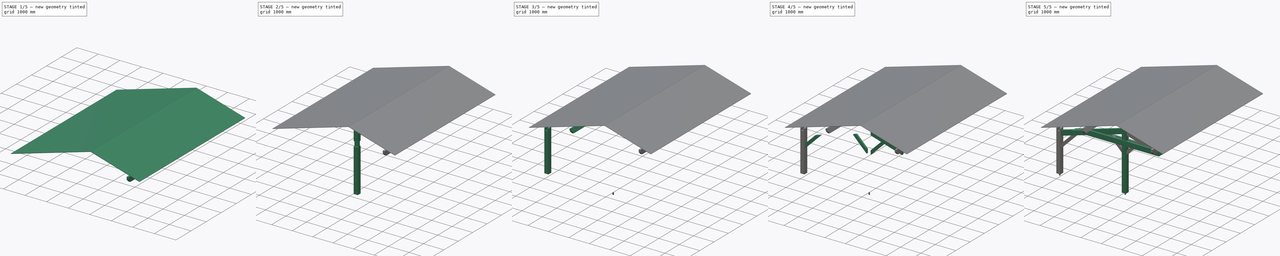
[diagram: build sequence overview — one tinted view per stage of 5, left to right]
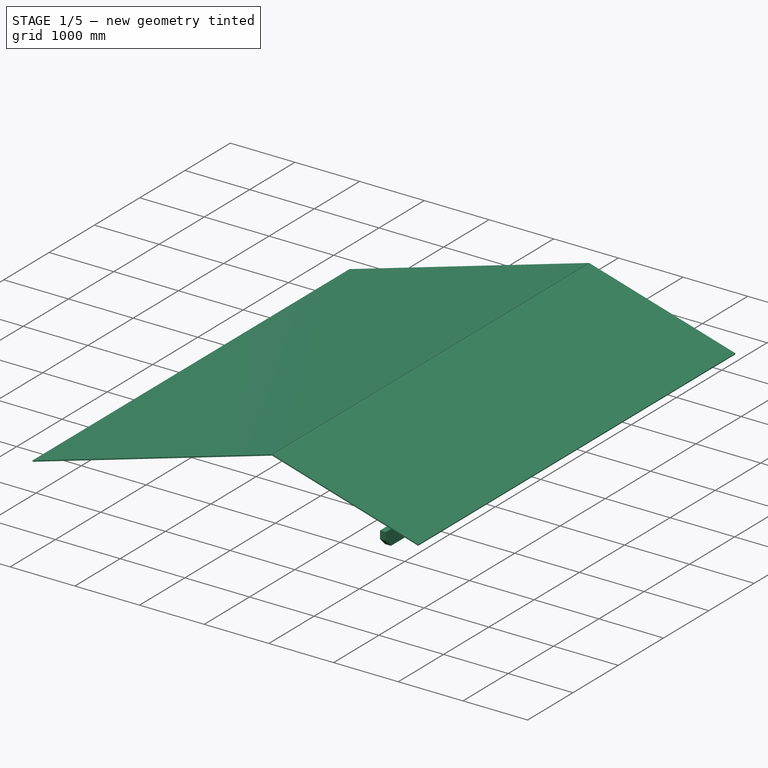
[diagram: stage 1 of 5 — iso view after this stage's code; geometry added in this stage tinted green]
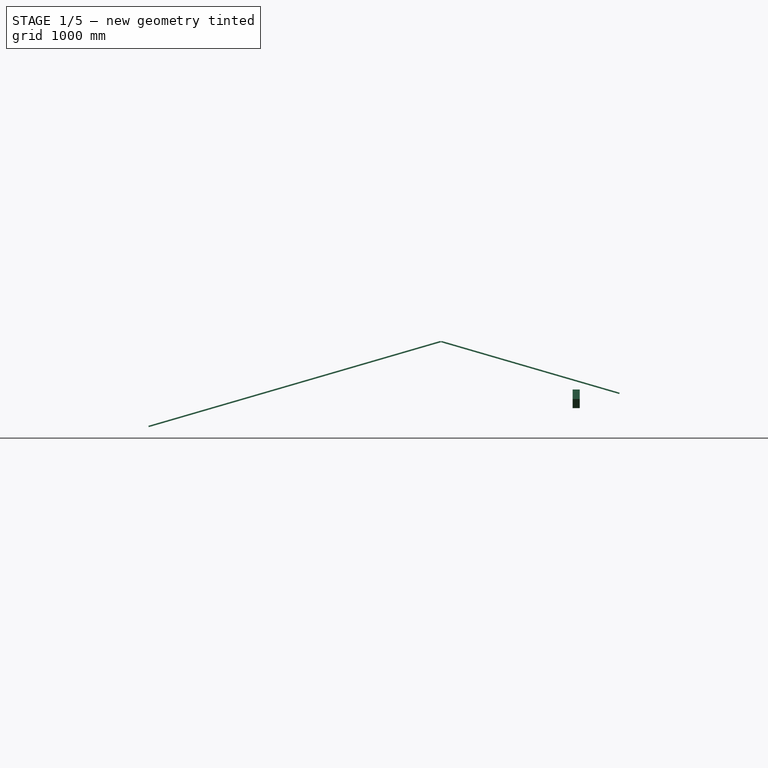
[diagram: stage 1 of 5 — front view after this stage's code; geometry added in this stage tinted green]
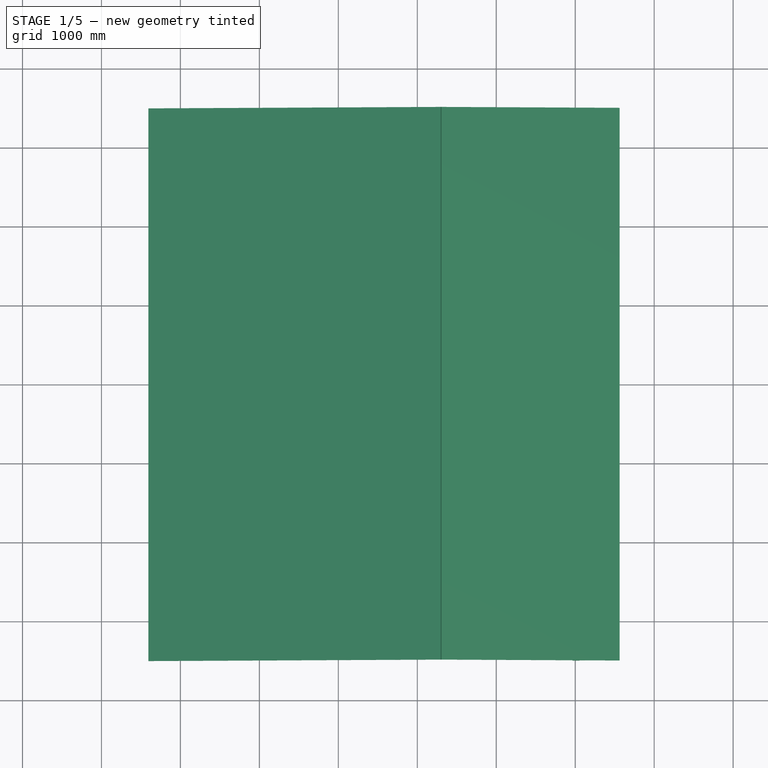
[diagram: stage 1 of 5 — top view after this stage's code; geometry added in this stage tinted green]
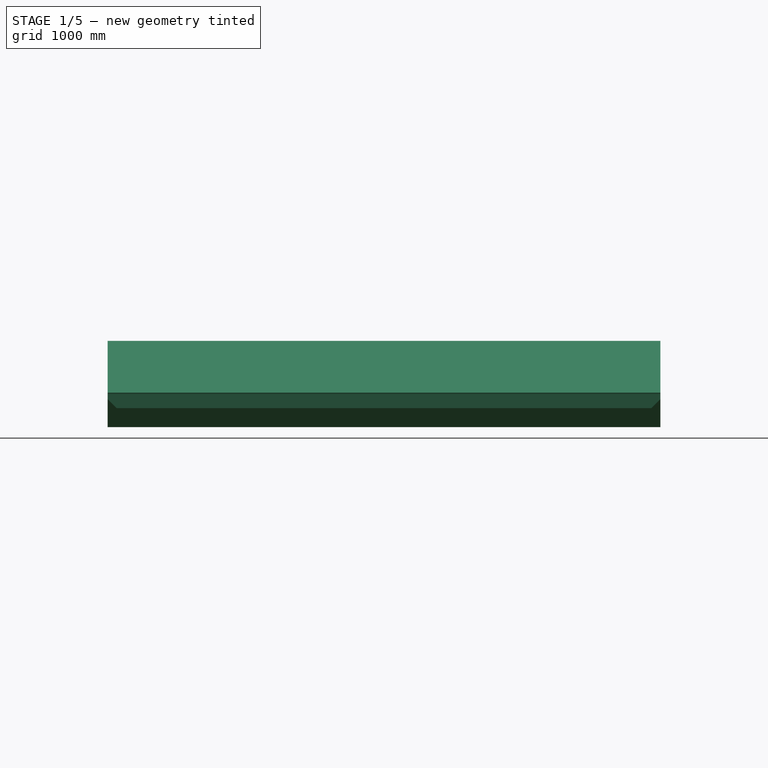
[diagram: stage 1 of 5 — right view after this stage's code; geometry added in this stage tinted green]
FCSTD DOCUMENT  (FreeCAD 1.0R39319 (Git))
Label: car_port
License: All rights reserved
objects: PartDesign::Body×31, PartDesign::SubShapeBinder×24, PartDesign::Pad×19, PartDesign::FeatureBase×12, Sketcher::SketchObject×5, PartDesign::Chamfer×5, PartDesign::Boolean×3, PartDesign::LinearPattern×2, App::VarSet×1, App::Part×1
note: 171 computed .brp shape members not serialized (recipe doc carries the construction recipe); baked Part::Feature solids carry a one-line shape summary decoded from their .brp

FEATURE [PartDesign::Body] Body014
  AllowCompound = false
  Group = -> [Clone003]
  Origin = -> Origin014
  Tip = -> Clone003
FEATURE [App::Part] Part  label="клонорованные_детали"
  Group = -> [Body012,Body013,Body014,Body015,Body016,Body017,Body018,Body019,Body020,Body021,Body022]
  Origin = -> Origin023
  Placement = pos=(0,5800,0) rot=(0,0,1;0rad)
  expr: .Placement.Base.y = <<VarSet>>.Length - 200 mm
FEATURE [PartDesign::SubShapeBinder] Binder019
  BindCopyOnChange = 0
  BindMode = 0
  ClaimChildren = false
  Context = -> Body026 [Binder019.]
  Fuse = false
  MakeFace = true
  OffsetFill = false
  OffsetIntersection = false
  OffsetJoinType = 0
  OffsetOpenResult = false
  PartialLoad = false
  Refine = true
  Relative = true
  Support = -> [Sketch]
  _Version = 2
FEATURE [PartDesign::Pad] Pad014
  Direction = (0,1,0)
  Length = 6500
  Length2 = 500
  Profile = -> Binder019 [Edge38,Edge60,Edge58,Edge59]
  Refine = true
  Suppressed = false
  Type = 4
  expr: Length = <<VarSet>>.Length + 500 mm
FEATURE [PartDesign::Chamfer] Chamfer004
  Angle = 45
  Base = -> Pad014 [Edge3,Edge4]
  BaseFeature = -> Pad014
  ChamferType = 0
  FlipDirection = false
  Refine = true
  Size = 115
  Size2 = 1
  SupportTransform = false
  Suppressed = false
  UseAllEdges = false
FEATURE [PartDesign::Body] Body026  label="Балка_4"
  AllowCompound = false
  Group = -> [Binder019,Pad014,Chamfer004]
  Origin = -> Origin027
  Tip = -> Chamfer004
FEATURE [PartDesign::SubShapeBinder] Binder020
  BindCopyOnChange = 0
  BindMode = 0
  ClaimChildren = false
  Context = -> Body027 [Binder020.]
  Fuse = false
  MakeFace = true
  OffsetFill = false
  OffsetIntersection = false
  OffsetJoinType = 0
  OffsetOpenResult = false
  PartialLoad = false
  Placement = pos=(0,-500,0) rot=(0,0,1;0rad)
  Refine = true
  Relative = true
  Support = -> [Sketch]
  _Version = 2
FEATURE [PartDesign::Pad] Pad015
  Direction = (0,1,0)
  Length = 75
  Length2 = 10
  Placement = pos=(0,-500,0) rot=(0,0,1;0rad)
  Profile = -> Binder020 [Edge52,Edge50,Edge51,Edge44,Edge45,Edge49]
  Refine = true
  Suppressed = false
  Type = 0
FEATURE [PartDesign::LinearPattern] LinearPattern
  BaseFeature = -> Pad015
  Direction = -> Y_Axis028
  Length = 6925
  Mode = 0
  Occurrences = 15
  Offset = 494.643
  Originals = -> [Pad015]
  Placement = pos=(0,-500,0) rot=(0,0,1;0rad)
  Refine = true
  Suppressed = false
  TransformMode = 0
  expr: Length = <<VarSet>>.Length + 1000 mm - 75 mm
  expr: Occurrences = <<VarSet>>.Base_number_roof_battens
FEATURE [PartDesign::Body] Body027  label="кровельные_обрешётки_задние"
  AllowCompound = true
  Group = -> [Binder020,Pad015,LinearPattern]
  Origin = -> Origin028
  Tip = -> LinearPattern
FEATURE [PartDesign::SubShapeBinder] Binder021
  BindCopyOnChange = 0
  BindMode = 0
  ClaimChildren = false
  Context = -> Body028 [Binder021.]
  Fuse = false
  MakeFace = true
  OffsetFill = false
  OffsetIntersection = false
  OffsetJoinType = 0
  OffsetOpenResult = false
  PartialLoad = false
  Placement = pos=(0,-500,0) rot=(0,0,1;0rad)
  Refine = true
  Relative = true
  Support = -> [Sketch]
  _Version = 2
FEATURE [PartDesign::Pad] Pad016
  Direction = (0,1,3e-16)
  Length = 75
  Length2 = 10
  Placement = pos=(0,-500,0) rot=(0,0,1;0rad)
  Profile = -> Binder021 [Edge49,Edge46,Edge48,Edge47]
  Refine = true
  Suppressed = false
  Type = 0
FEATURE [PartDesign::LinearPattern] LinearPattern001
  BaseFeature = -> Pad016
  Direction = -> Y_Axis029
  Length = 6925
  Mode = 0
  Occurrences = 15
  Offset = 494.643
  Originals = -> [Pad016]
  Placement = pos=(0,-500,0) rot=(0,0,1;0rad)
  Refine = true
  Suppressed = false
  TransformMode = 0
  expr: Length = <<VarSet>>.Length + 1000 mm - 75 mm
  expr: Occurrences = <<VarSet>>.Base_number_roof_battens
FEATURE [PartDesign::Body] Body028  label="кровельные_обрешётки_передние"
  AllowCompound = true
  Group = -> [Binder021,Pad016,LinearPattern001]
  Origin = -> Origin029
  Tip = -> LinearPattern001
FEATURE [PartDesign::SubShapeBinder] Binder022
  BindCopyOnChange = 0
  BindMode = 0
  ClaimChildren = false
  Context = -> Body029 [Binder022.]
  Fuse = false
  MakeFace = true
  OffsetFill = false
  OffsetIntersection = false
  OffsetJoinType = 0
  OffsetOpenResult = false
  PartialLoad = false
  Refine = true
  Relative = true
  Support = -> [Body027[LinearPattern.Face2]]
  _Version = 2
FEATURE [Sketcher::SketchObject] Sketch003
  ArcFitTolerance = 1e-06
  AttachmentSupport = -> [Binder022]
  ExternalGeometry = -> [Binder022]
  FullyConstrained = true
  MakeInternals = false
  MapMode = 5
  Placement = pos=(-592.266,0,2037.91) rot=(0,-1,0;0.282834rad)
  expr: Constraints[9] = <<VarSet>>.Length + 1000 mm
  sketch-geometry (4):
    g0: LineSegment StartX=4053.31 StartY=-500 StartZ=0 EndX=4053.31 EndY=6500 EndZ=0
    g1: LineSegment StartX=4053.31 StartY=6500 StartZ=0 EndX=200.221 EndY=6500 EndZ=0
    g2: LineSegment StartX=200.221 StartY=6500 StartZ=0 EndX=200.221 EndY=-500 EndZ=0
    g3: LineSegment StartX=200.221 StartY=-500 StartZ=0 EndX=4053.31 EndY=-500 EndZ=0
  constraints (10):
    c: Coincident(g0,g1)
    c: Coincident(g1,g2)
    c: Coincident(g2,g3)
    c: Coincident(g3,g0)
    c: Vertical(g0)
    c: Vertical(g2)
    c: Horizontal(g1)
    c: Coincident(g0,g-3)
    c: Coincident(g2,g-3)
    c: DistanceY(g2,g2) = 7000
FEATURE [PartDesign::Pad] Pad017
  Direction = (-0.279078,0,0.960268)
  Length = 18
  Length2 = 10
  Profile = -> Sketch003
  ReferenceAxis = -> Sketch003 [N_Axis]
  Refine = true
  Suppressed = false
  Type = 0
FEATURE [PartDesign::Body] Body029  label="OSB_back"
  AllowCompound = false
  Group = -> [Binder022,Sketch003,Pad017]
  Origin = -> Origin030
  Tip = -> Pad017
FEATURE [PartDesign::SubShapeBinder] Binder023
  BindCopyOnChange = 0
  BindMode = 0
  ClaimChildren = false
  Context = -> Body030 [Binder023.]
  Fuse = false
  MakeFace = true
  OffsetFill = false
  OffsetIntersection = false
  OffsetJoinType = 0
  OffsetOpenResult = false
  PartialLoad = false
  Refine = true
  Relative = true
  Support = -> [Body028[LinearPattern001.Face2]]
  _Version = 2
FEATURE [Sketcher::SketchObject] Sketch004
  ArcFitTolerance = 1e-06
  AttachmentSupport = -> [Binder023]
  ExternalGeometry = -> [Binder023]
  FullyConstrained = true
  MakeInternals = false
  MapMode = 5
  Placement = pos=(1106.3,-1.2223e-12,3806.64) rot=(0,1,0;0.282834rad)
  expr: Constraints[9] = <<VarSet>>.Length + 1000 mm
  sketch-geometry (4):
    g0: LineSegment StartX=2284.46 StartY=-500 StartZ=0 EndX=4634.67 EndY=-500 EndZ=0
    g1: LineSegment StartX=4634.67 StartY=-500 StartZ=0 EndX=4634.67 EndY=6500 EndZ=0
    g2: LineSegment StartX=4634.67 StartY=6500 StartZ=0 EndX=2284.46 EndY=6500 EndZ=0
    g3: LineSegment StartX=2284.46 StartY=6500 StartZ=0 EndX=2284.46 EndY=-500 EndZ=0
  constraints (10):
    c: Coincident(g0,g1)
    c: Coincident(g1,g2)
    c: Coincident(g2,g3)
    c: Coincident(g3,g0)
    c: Horizontal(g2)
    c: Vertical(g1)
    c: Vertical(g3)
    c: Coincident(g0,g-3)
    c: Coincident(g0,g-3)
    c: DistanceY(g1,g1) = 7000
FEATURE [PartDesign::Pad] Pad018
  Direction = (0.279078,0,0.960268)
  Length = 18
  Length2 = 10
  Profile = -> Sketch004
  ReferenceAxis = -> Sketch004 [N_Axis]
  Refine = true
  Suppressed = false
  Type = 0
FEATURE [PartDesign::Body] Body030  label="OSB_front"
  AllowCompound = false
  Group = -> [Binder023,Sketch004,Pad018]
  Origin = -> Origin031
  Tip = -> Pad018
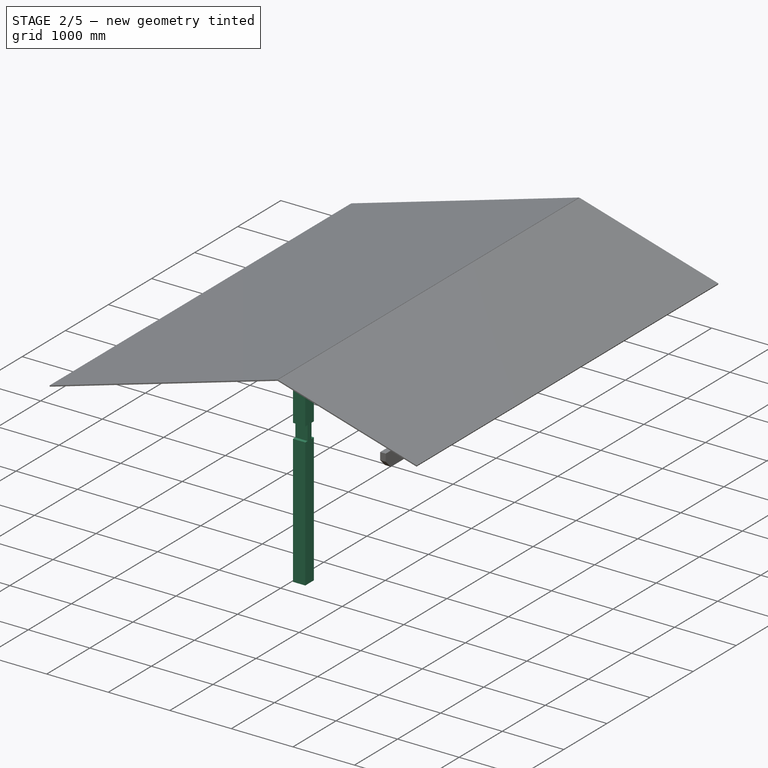
[diagram: stage 2 of 5 — iso view after this stage's code; geometry added in this stage tinted green]
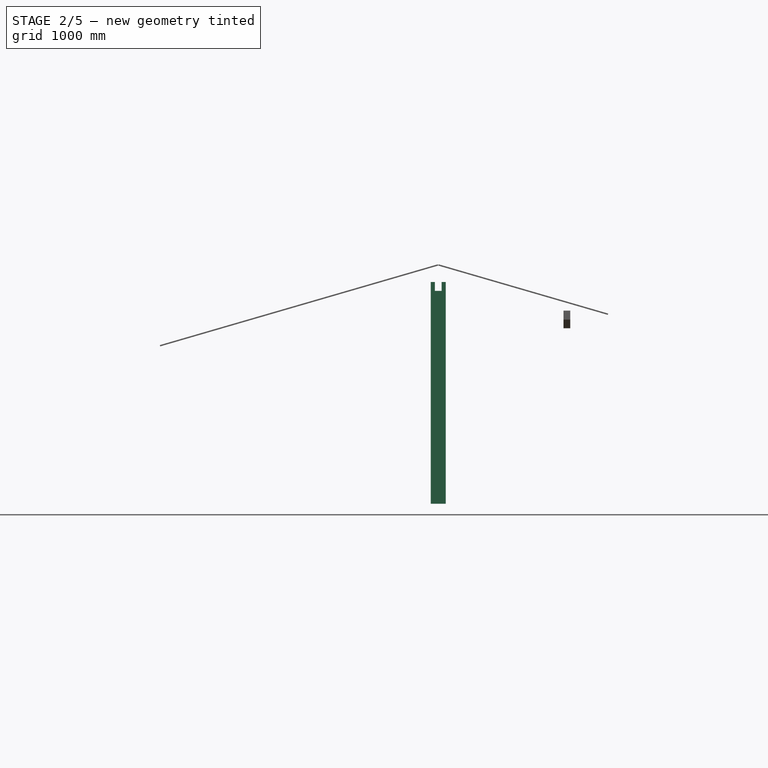
[diagram: stage 2 of 5 — front view after this stage's code; geometry added in this stage tinted green]
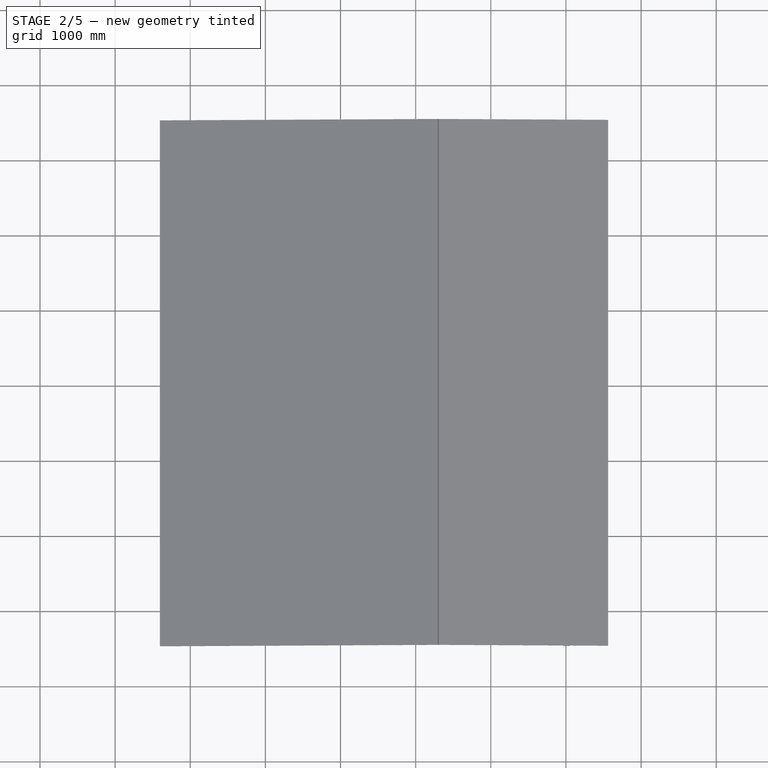
[diagram: stage 2 of 5 — top view after this stage's code; geometry added in this stage tinted green]
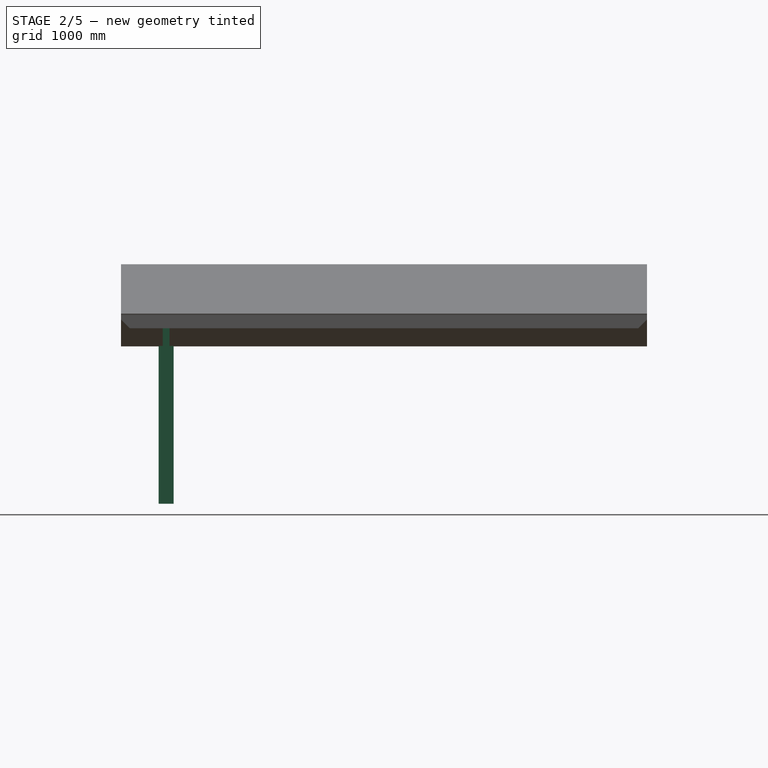
[diagram: stage 2 of 5 — right view after this stage's code; geometry added in this stage tinted green]
FEATURE [PartDesign::SubShapeBinder] Binder001
  BindCopyOnChange = 0
  BindMode = 0
  ClaimChildren = false
  Context = -> Body001 [Binder001.]
  Fuse = false
  MakeFace = true
  OffsetFill = false
  OffsetIntersection = false
  OffsetJoinType = 0
  OffsetOpenResult = false
  PartialLoad = false
  Refine = true
  Relative = true
  Support = -> [Sketch]
  _Version = 2
FEATURE [PartDesign::Pad] Pad001
  Direction = (0,1,0)
  Length = 200
  Length2 = 10
  Profile = -> Binder001 [Edge22,Edge23,Edge24,Edge25,Edge18,Edge21,Edge33,Edge28,Edge32,Edge29,Edge30,Edge31]
  Refine = true
  Suppressed = false
  Type = 0
FEATURE [PartDesign::Body] Body002  label="Задняя_стропильная_балка"
  AllowCompound = false
  Group = -> [Binder002,Pad002]
  Origin = -> Origin002
  Tip = -> Pad002
FEATURE [PartDesign::SubShapeBinder] Binder003
  BindCopyOnChange = 0
  BindMode = 0
  ClaimChildren = false
  Context = -> Body003 [Binder003.]
  Fuse = false
  MakeFace = true
  OffsetFill = false
  OffsetIntersection = false
  OffsetJoinType = 0
  OffsetOpenResult = false
  PartialLoad = false
  Placement = pos=(0,-35,0) rot=(0,0,1;0rad)
  Refine = true
  Relative = true
  Support = -> [Sketch]
  _Version = 2
FEATURE [PartDesign::Pad] Pad003
  Direction = (0,1,0)
  Length = 90
  Length2 = 10
  Placement = pos=(0,-35,0) rot=(0,0,1;0rad)
  Profile = -> Binder003 [Edge63,Edge62,Edge61,Edge38,Edge39,Edge40]
  Refine = true
  Suppressed = false
  Type = 0
FEATURE [PartDesign::Chamfer] Chamfer
  Angle = 45
  Base = -> Pad003 [Edge1]
  BaseFeature = -> Pad003
  ChamferType = 0
  FlipDirection = false
  Placement = pos=(0,-35,0) rot=(0,0,1;0rad)
  Refine = true
  Size = 115
  Size2 = 1
  SupportTransform = false
  Suppressed = false
  UseAllEdges = false
FEATURE [PartDesign::Body] Body003  label="Правая_поперечная_балка"
  AllowCompound = false
  Group = -> [Binder003,Pad003,Chamfer]
  Origin = -> Origin003
  Tip = -> Chamfer
FEATURE [PartDesign::FeatureBase] Clone
  BaseFeature = -> Body003
  Suppressed = false
FEATURE [PartDesign::Body] Body004  label="Левая_поперечная_балка"
  AllowCompound = false
  Group = -> [Clone]
  Origin = -> Origin004
  Placement = pos=(0,180,0) rot=(0,0,1;0rad)
  Tip = -> Clone
FEATURE [PartDesign::SubShapeBinder] Binder004
  BindCopyOnChange = 0
  BindMode = 0
  ClaimChildren = false
  Context = -> Body001 [Binder004.]
  Fuse = false
  MakeFace = true
  OffsetFill = false
  OffsetIntersection = false
  OffsetJoinType = 0
  OffsetOpenResult = false
  PartialLoad = false
  Refine = true
  Relative = true
  Support = -> [Body003,Body004]
  _Version = 2
FEATURE [PartDesign::Boolean] Boolean
  BaseFeature = -> Pad001
  Group = -> [Binder004]
  Refine = true
  Suppressed = false
  Type = 1
  UsePlacement = true
FEATURE [PartDesign::Body] Body024  label="Балка_2"
  AllowCompound = false
  Group = -> [Binder016,Pad012,Chamfer002]
  Origin = -> Origin025
  Tip = -> Chamfer002
FEATURE [PartDesign::SubShapeBinder] Binder017
  BindCopyOnChange = 0
  BindMode = 0
  ClaimChildren = false
  Context = -> Body025 [Binder017.]
  Fuse = false
  MakeFace = true
  OffsetFill = false
  OffsetIntersection = false
  OffsetJoinType = 0
  OffsetOpenResult = false
  PartialLoad = false
  Refine = true
  Relative = true
  Support = -> [Sketch]
  _Version = 2
FEATURE [PartDesign::Pad] Pad013
  Direction = (0,1,0)
  Length = 6500
  Length2 = 500
  Profile = -> Binder017 [Edge69,Edge72,Edge70,Edge71]
  Refine = true
  Suppressed = false
  Type = 4
  expr: Length = <<VarSet>>.Length + 500 mm
FEATURE [PartDesign::Chamfer] Chamfer003
  Angle = 45
  Base = -> Pad013 [Edge3,Edge4]
  BaseFeature = -> Pad013
  ChamferType = 0
  FlipDirection = false
  Refine = true
  Size = 115
  Size2 = 1
  SupportTransform = false
  Suppressed = false
  UseAllEdges = false
FEATURE [PartDesign::Body] Body025  label="Балка_3"
  AllowCompound = false
  Group = -> [Binder017,Pad013,Chamfer003]
  Origin = -> Origin026
  Tip = -> Chamfer003
FEATURE [PartDesign::SubShapeBinder] Binder018
  BindCopyOnChange = 0
  BindMode = 0
  ClaimChildren = false
  Context = -> Body001 [Binder018.]
  Fuse = false
  MakeFace = true
  OffsetFill = false
  OffsetIntersection = false
  OffsetJoinType = 0
  OffsetOpenResult = false
  PartialLoad = false
  Refine = true
  Relative = true
  Support = -> [Body025]
  _Version = 2
FEATURE [PartDesign::Boolean] Boolean002
  BaseFeature = -> Boolean
  Group = -> [Binder018]
  Refine = true
  Suppressed = false
  Type = 1
  UsePlacement = true
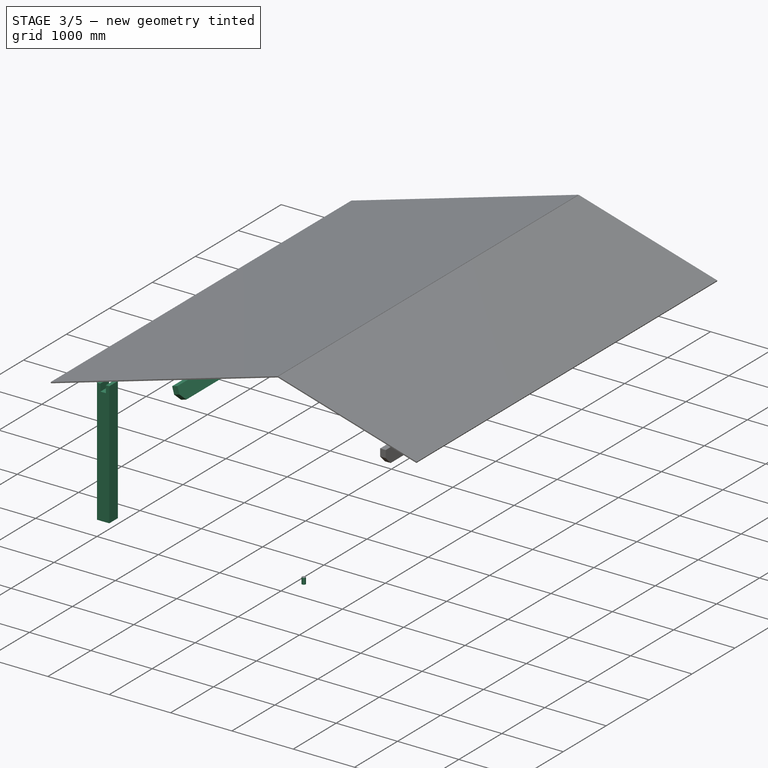
[diagram: stage 3 of 5 — iso view after this stage's code; geometry added in this stage tinted green]
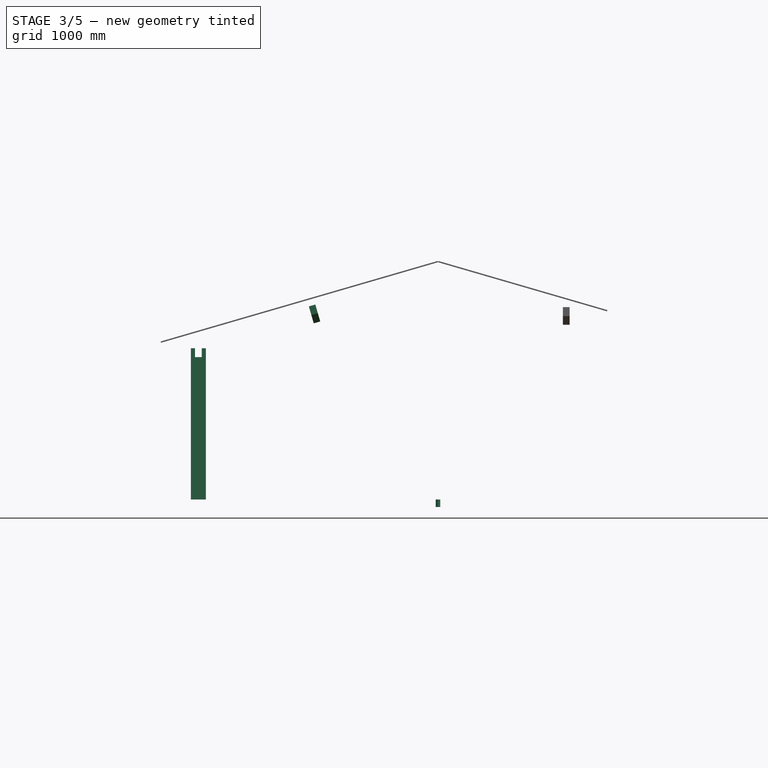
[diagram: stage 3 of 5 — front view after this stage's code; geometry added in this stage tinted green]
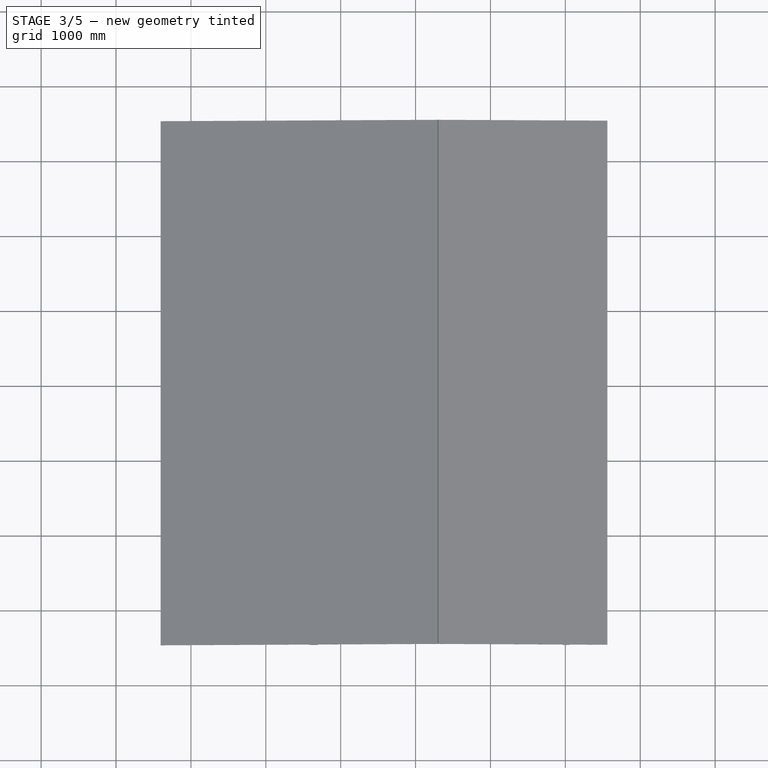
[diagram: stage 3 of 5 — top view after this stage's code; geometry added in this stage tinted green]
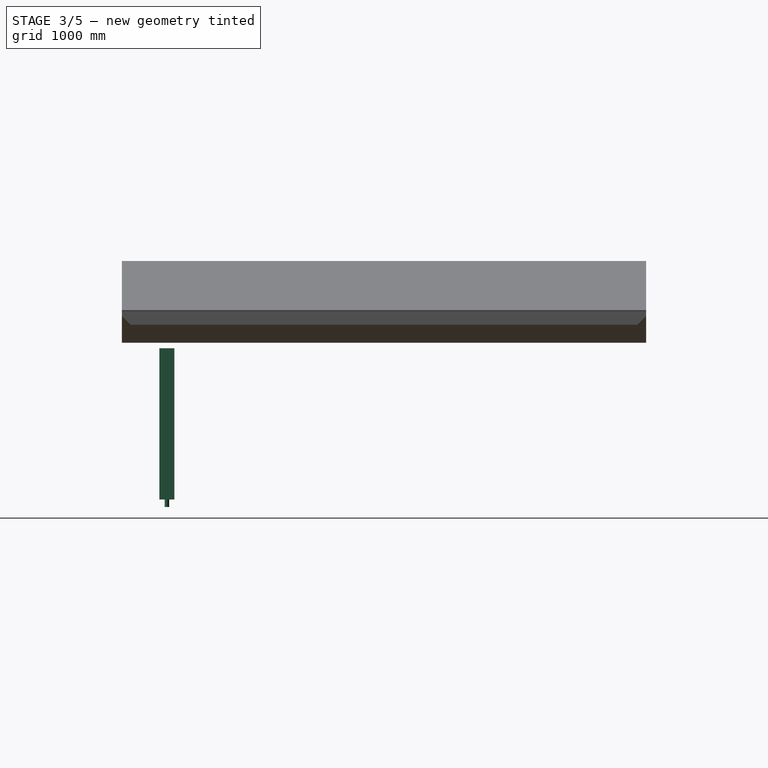
[diagram: stage 3 of 5 — right view after this stage's code; geometry added in this stage tinted green]
FEATURE [Sketcher::SketchObject] Sketch  label="Master_sketch"
  ArcFitTolerance = 1e-06
  FullyConstrained = true
  MakeInternals = false
  Placement = pos=(0,0,0) rot=(1,0,0;1.5708rad)
  sketch-geometry (76):
    g0: LineSegment StartX=0 StartY=-100 StartZ=0 EndX=0 EndY=-310 EndZ=0
    g1: LineSegment StartX=0 StartY=-310 StartZ=0 EndX=4700 EndY=-310 EndZ=0
    g2: LineSegment StartX=4700 StartY=-310 StartZ=0 EndX=4700 EndY=-100 EndZ=0
    g3: LineSegment StartX=4700 StartY=-100 StartZ=0 EndX=0 EndY=-100 EndZ=0
    g4: LineSegment StartX=0 StartY=0 StartZ=0 EndX=200 EndY=0 EndZ=0
    g5: LineSegment StartX=200 StartY=2020 StartZ=0 EndX=0 EndY=2020 EndZ=0
    g6: LineSegment StartX=0 StartY=2020 StartZ=0 EndX=0 EndY=0 EndZ=0
    g7: LineSegment StartX=3200 StartY=0 StartZ=0 EndX=3400 EndY=0 EndZ=0
    g8: LineSegment StartX=3400 StartY=2950 StartZ=0 EndX=3200 EndY=2950 EndZ=0
    g9: LineSegment StartX=200 StartY=1934.92 StartZ=0 EndX=200 EndY=2020 EndZ=0
    g10: LineSegment StartX=200 StartY=1690.19 StartZ=0 EndX=200 EndY=1934.92 EndZ=0
    g11: LineSegment StartX=3200 StartY=2950 StartZ=0 EndX=3200 EndY=2806.79 EndZ=0
    g12: LineSegment StartX=3200 StartY=2806.79 StartZ=0 EndX=3200 EndY=2562.07 EndZ=0
    g13: LineSegment StartX=55 StartY=1902.5 StartZ=0 EndX=145 EndY=1902.5 EndZ=0
    g14: LineSegment StartX=145 StartY=1902.5 StartZ=0 EndX=145 EndY=2137.5 EndZ=0
    g15: LineSegment StartX=145 StartY=2137.5 StartZ=0 EndX=55 EndY=2137.5 EndZ=0
    g16: LineSegment StartX=55 StartY=2137.5 StartZ=0 EndX=55 EndY=1902.5 EndZ=0
    g17: GeomPoint [constr] X=100 Y=2020 Z=0
    g18: LineSegment StartX=3255 StartY=2832.5 StartZ=0 EndX=3345 EndY=2832.5 EndZ=0
    g19: LineSegment StartX=3345 StartY=2832.5 StartZ=0 EndX=3345 EndY=3067.5 EndZ=0
    g20: LineSegment StartX=3345 StartY=3067.5 StartZ=0 EndX=3255 EndY=3067.5 EndZ=0
    g21: LineSegment StartX=3255 StartY=3067.5 StartZ=0 EndX=3255 EndY=2832.5 EndZ=0
    g22: GeomPoint [constr] X=3300 Y=2950 Z=0
    g23: LineSegment StartX=3300 StartY=3080.58 StartZ=0 EndX=3300 EndY=3169.1 EndZ=0
    g24: LineSegment StartX=3300 StartY=3169.1 StartZ=0 EndX=-400 EndY=2093.78 EndZ=0
    g25: LineSegment StartX=-400 StartY=2093.78 StartZ=0 EndX=-400 EndY=2005.27 EndZ=0
    g26: LineSegment [constr] StartX=3300 StartY=3067.5 StartZ=0 EndX=3300 EndY=2950 EndZ=0
    g27: LineSegment [constr] StartX=100 StartY=2137.5 StartZ=0 EndX=100 EndY=2020 EndZ=0
    g28: LineSegment StartX=1574.82 StartY=2579.2 StartZ=0 EndX=1640.4 EndY=2353.53 EndZ=0
    g29: LineSegment StartX=1661.24 StartY=2604.31 StartZ=0 EndX=1726.83 EndY=2378.65 EndZ=0
    g30: LineSegment StartX=-400 StartY=2005.27 StartZ=0 EndX=1574.82 EndY=2579.2 EndZ=0
    g31: LineSegment StartX=1574.82 StartY=2579.2 StartZ=0 EndX=1661.24 EndY=2604.31 EndZ=0
    g32: LineSegment StartX=1661.24 StartY=2604.31 StartZ=0 EndX=3300 EndY=3080.58 EndZ=0
    g33: LineSegment StartX=1726.83 StartY=2378.65 StartZ=0 EndX=3200 EndY=2806.79 EndZ=0
    g34: LineSegment StartX=1640.4 StartY=2353.53 StartZ=0 EndX=1726.83 EndY=2378.65 EndZ=0
    g35: LineSegment StartX=200 StartY=1347.99 StartZ=0 EndX=682.402 EndY=1830.39 EndZ=0
    g36: LineSegment StartX=200 StartY=1150 StartZ=0 EndX=961.507 EndY=1911.51 EndZ=0
    g37: LineSegment StartX=2685.46 StartY=2412.53 StartZ=0 EndX=3200 EndY=1897.99 EndZ=0
    g38: LineSegment StartX=3200 StartY=1700 StartZ=0 EndX=2532.05 EndY=2367.95 EndZ=0
    g39: LineSegment StartX=200 StartY=1690.19 StartZ=0 EndX=682.402 EndY=1830.39 EndZ=0
    g40: LineSegment StartX=682.402 StartY=1830.39 StartZ=0 EndX=961.507 EndY=1911.51 EndZ=0
    g41: LineSegment StartX=200 StartY=1347.99 StartZ=0 EndX=200 EndY=1690.19 EndZ=0
    g42: LineSegment StartX=200 StartY=0 StartZ=0 EndX=200 EndY=1150 EndZ=0
    g43: LineSegment StartX=200 StartY=1150 StartZ=0 EndX=200 EndY=1347.99 EndZ=0
    g44: LineSegment StartX=961.507 StartY=1911.51 StartZ=0 EndX=2532.05 EndY=2367.95 EndZ=0
    g45: LineSegment StartX=2532.05 StartY=2367.95 StartZ=0 EndX=2685.46 EndY=2412.53 EndZ=0
    g46: LineSegment StartX=2685.46 StartY=2412.53 StartZ=0 EndX=3200 EndY=2562.07 EndZ=0
    g47: LineSegment StartX=3200 StartY=1700 StartZ=0 EndX=3200 EndY=0 EndZ=0
    g48: LineSegment StartX=3200 StartY=2562.07 StartZ=0 EndX=3200 EndY=1897.99 EndZ=0
    g49: LineSegment StartX=3200 StartY=1897.99 StartZ=0 EndX=3200 EndY=1700 EndZ=0
    g50: LineSegment StartX=5156.83 StartY=2335 StartZ=0 EndX=5156.83 EndY=2100 EndZ=0
    g51: LineSegment StartX=5156.83 StartY=2100 StartZ=0 EndX=768.026 EndY=2100 EndZ=0
    g52: LineSegment StartX=1576.63 StartY=2335 StartZ=0 EndX=1640.4 EndY=2353.53 EndZ=0
    g53: LineSegment StartX=200 StartY=1934.92 StartZ=0 EndX=768.026 EndY=2100 EndZ=0
    g54: LineSegment StartX=768.026 StartY=2100 StartZ=0 EndX=1576.63 EndY=2335 EndZ=0
    g55: LineSegment StartX=4966.83 StartY=2335 StartZ=0 EndX=4966.83 EndY=2570 EndZ=0
    g56: LineSegment StartX=4966.83 StartY=2570 StartZ=0 EndX=5056.83 EndY=2570 EndZ=0
    g57: LineSegment StartX=5056.83 StartY=2570 StartZ=0 EndX=5056.83 EndY=2335 EndZ=0
    g58: LineSegment StartX=3300 StartY=3169.1 StartZ=0 EndX=5556.83 EndY=2513.2 EndZ=0
    g59: LineSegment StartX=5556.83 StartY=2513.2 StartZ=0 EndX=5556.83 EndY=2424.69 EndZ=0
    g60: LineSegment StartX=5556.83 StartY=2424.69 StartZ=0 EndX=3300 EndY=3080.58 EndZ=0
    g61: LineSegment StartX=1576.63 StartY=2335 StartZ=0 EndX=4966.83 EndY=2335 EndZ=0
    g62: LineSegment StartX=4966.83 StartY=2335 StartZ=0 EndX=5056.83 EndY=2335 EndZ=0
    g63: LineSegment StartX=5056.83 StartY=2335 StartZ=0 EndX=5156.83 EndY=2335 EndZ=0
    g64: LineSegment StartX=3400 StartY=2806.79 StartZ=0 EndX=4966.83 EndY=2335 EndZ=0
    g65: LineSegment StartX=4966.83 StartY=2335 StartZ=0 EndX=4934.54 EndY=2100 EndZ=0
    g66: LineSegment StartX=3400 StartY=2806.79 StartZ=0 EndX=3400 EndY=2950 EndZ=0
    g67: LineSegment StartX=3400 StartY=2562.07 StartZ=0 EndX=3400 EndY=2806.79 EndZ=0
    g68: LineSegment StartX=3400 StartY=1897.99 StartZ=0 EndX=3910.39 EndY=2408.38 EndZ=0
    g69: LineSegment StartX=3400 StartY=1700 StartZ=0 EndX=4062.56 EndY=2362.56 EndZ=0
    g70: LineSegment StartX=3400 StartY=1897.99 StartZ=0 EndX=3400 EndY=2562.07 EndZ=0
    g71: LineSegment StartX=3400 StartY=0 StartZ=0 EndX=3400 EndY=1700 EndZ=0
    g72: LineSegment StartX=3400 StartY=1700 StartZ=0 EndX=3400 EndY=1897.99 EndZ=0
    g73: LineSegment StartX=3910.39 StartY=2408.38 StartZ=0 EndX=3400 EndY=2562.07 EndZ=0
    g74: LineSegment StartX=4934.54 StartY=2100 StartZ=0 EndX=4062.56 EndY=2362.56 EndZ=0
    g75: LineSegment StartX=4062.56 StartY=2362.56 StartZ=0 EndX=3910.39 EndY=2408.38 EndZ=0
  constraints (230):
    c: Coincident(g0,g1)
    c: Coincident(g1,g2)
    c: Coincident(g2,g3)
    c: Coincident(g3,g0)
    c: Vertical(g0)
    c: Vertical(g2)
    c: Horizontal(g1)
    c: Horizontal(g3)
    c: Distance(g0,g2) = 4700
    c: Distance(g1,g3) = 210
    c: PointOnObject(g0,g-2)
    c: Distance(g3,g-1) = 100
    c: Coincident(g4,g42)
    c: Coincident(g9,g5)
    c: Coincident(g5,g6)
    c: Coincident(g6,g4)
    c: Horizontal(g4)
    c: Horizontal(g5)
    c: Vertical(g6)
    c: Distance(g42,g6) = 200
    c: Distance(g4,g5) = 2020
    c: Coincident(g4,g-1)
    c: Coincident(g7,g71)
    c: Coincident(g66,g8)
    c: Coincident(g8,g11)
    c: Coincident(g47,g7)
    c: Horizontal(g7)
    c: Horizontal(g8)
    c: Distance(g71,g47) = 200
    c: Distance(g7,g8) = 2950
    c: PointOnObject(g7,g-1)
    c: Distance(g71,g6) = 3400
    c: Coincident(g10,g9)
    c: Vertical(g9)
    c: Coincident(g41,g10)
    c: Vertical(g10)
    c: Coincident(g11,g12)
    c: Vertical(g11)
    c: PointOnObject(g33,g11)
    c: PointOnObject(g46,g11)
    c: Coincident(g12,g48)
    c: Vertical(g12)
    c: Coincident(g13,g14)
    c: Coincident(g14,g15)
    c: Coincident(g15,g16)
    c: Coincident(g16,g13)
    c: Horizontal(g13)
    c: Horizontal(g15)
    c: Vertical(g14)
    c: Vertical(g16)
    c: Symmetric(g15,g13,g17)
    c: Distance(g14,g16) = 90
    c: Distance(g13,g15) = 235
    c: Symmetric(g5,g5,g17)
    c: Coincident(g18,g19)
    c: Coincident(g19,g20)
    c: Coincident(g20,g21)
    c: Coincident(g21,g18)
    c: Horizontal(g18)
    c: Horizontal(g20)
    c: Vertical(g19)
    c: Vertical(g21)
    c: Symmetric(g20,g18,g22)
    c: Distance(g19,g21) = 90
    c: Distance(g18,g20) = 235
    c: Symmetric(g8,g8,g22)
    c: Vertical(g23)
    c: Coincident(g23,g24)
    c: Coincident(g24,g25)
    c: Vertical(g25)
    c: Coincident(g25,g30)
    c: Coincident(g32,g23)
    c: Distance(g30,g24) = 85
    c: Symmetric(g20,g20,g26)
    c: Coincident(g26,g22)
    c: Symmetric(g15,g15,g27)
    c: Coincident(g27,g17)
    c: Distance(g25,g6) = 400
    c: Vertical(g23,g26)
    c: Parallel(g29,g28)
    c: Distance(g29,g28) = 90
    c: Distance(g28,g53) = 1500
    c: Coincident(g30,g31)
    c: Parallel(g30,g24)
    c: PointOnObject(g20,g30)
    c: PointOnObject(g15,g30)
    c: PointOnObject(g28,g30)
    c: PointOnObject(g29,g30)
    c: Coincident(g31,g32)
    c: Parallel(g31,g24)
    c: Parallel(g32,g24)
    c: Coincident(g34,g33)
    c: Coincident(g52,g34)
    c: PointOnObject(g30,g28)
    c: PointOnObject(g31,g29)
    c: PointOnObject(g52,g28)
    c: PointOnObject(g33,g29)
    c: Parallel(g37,g38)
    c: Parallel(g36,g35)
    c: Coincident(g39,g40)
    c: Distance(g53,g39) = 235
    c: PointOnObject(g12,g39)
    c: PointOnObject(g41,g39)
    c: Parallel(g33,g39)
    c: PointOnObject(g35,g39)
    c: PointOnObject(g36,g39)
    c: PointOnObject(g37,g39)
    c: PointOnObject(g38,g39)
    c: Coincident(g40,g44)
    c: Parallel(g34,g40)
    c: Coincident(g43,g41)
    c: Vertical(g41)
    c: Coincident(g42,g43)
    c: Vertical(g42)
    c: Vertical(g43)
    c: PointOnObject(g53,g42)
    c: PointOnObject(g39,g42)
    c: PointOnObject(g35,g42)
    c: PointOnObject(g36,g42)
    c: PointOnObject(g39,g35)
    c: PointOnObject(g40,g36)
    c: PointOnObject(g41,g35)
    c: PointOnObject(g42,g36)
    c: Coincident(g44,g45)
    c: Coincident(g45,g46)
    c: Coincident(g49,g47)
    c: Vertical(g47)
    c: Coincident(g48,g49)
    c: Vertical(g48)
    c: Vertical(g49)
    c: PointOnObject(g37,g48)
    c: PointOnObject(g38,g48)
    c: PointOnObject(g47,g38)
    c: PointOnObject(g48,g37)
    c: PointOnObject(g45,g37)
    c: PointOnObject(g44,g38)
    c: Distance(g38,g37) = 140
    c: Distance(g36,g35) = 140
    c: DistanceY(g4,g36) = 1150
    c: DistanceY(g7,g38) = 1700
    c: Angle(g48,g37) = 0.785398
    c: Angle(g35,g41) = 0.785398
    c: Coincident(g63,g50)
    c: Vertical(g50)
    c: Coincident(g50,g51)
    c: Horizontal(g51)
    c: Distance(g50,g50) = 235
    c: Distance(g-1,g51) = 2100
    c: Coincident(g54,g52)
    c: Perpendicular(g52,g29)
    c: Parallel(g52,g31)
    c: Parallel(g52,g39)
    c: Parallel(g52,g40)
    c: Parallel(g52,g44)
    c: Coincident(g53,g54)
    c: PointOnObject(g11,g53)
    c: PointOnObject(g9,g53)
    c: Distance(g30,g53) = 235
    c: PointOnObject(g28,g53)
    c: PointOnObject(g29,g53)
    c: Parallel(g53,g39)
    c: Parallel(g54,g40)
    c: Parallel(g53,g45)
    c: Parallel(g53,g46)
    c: PointOnObject(g61,g53)
    c: PointOnObject(g51,g53)
    c: PointOnObject(g53,g51)
    c: Vertical(g55)
    c: Coincident(g55,g56)
    c: Horizontal(g56)
    c: Coincident(g56,g57)
    c: Vertical(g57)
    c: Distance(g56,g56) = 90
    c: DistanceY(g57,g57) = 235
    c: DistanceX(g57,g63) = 100
    c: Coincident(g23,g58)
    c: Coincident(g58,g59)
    c: Coincident(g59,g60)
    c: Coincident(g60,g23)
    c: Parallel(g58,g60)
    c: PointOnObject(g56,g60)
    c: Vertical(g59)
    c: DistanceX(g63,g59) = 400
    c: PointOnObject(g19,g60)
    c: Coincident(g61,g62)
    c: Horizontal(g61)
    c: PointOnObject(g52,g61)
    c: PointOnObject(g55,g61)
    c: PointOnObject(g57,g61)
    c: Coincident(g62,g63)
    c: Horizontal(g62)
    c: Horizontal(g63)
    c: PointOnObject(g61,g55)
    c: PointOnObject(g62,g57)
    c: Coincident(g64,g55)
    c: Coincident(g64,g65)
    c: PointOnObject(g65,g51)
    c: Coincident(g65,g74)
    c: Horizontal(g33,g64)
    c: Horizontal(g46,g73)
    c: Coincident(g67,g66)
    c: Vertical(g66)
    c: Coincident(g70,g67)
    c: Vertical(g67)
    c: PointOnObject(g66,g64)
    c: Parallel(g69,g68)
    c: Horizontal(g68,g37)
    c: Horizontal(g69,g38)
    c: Coincident(g72,g70)
    c: Vertical(g70)
    c: Coincident(g71,g72)
    c: Vertical(g71)
    c: Vertical(g72)
    c: PointOnObject(g64,g71)
    c: PointOnObject(g73,g71)
    c: PointOnObject(g68,g71)
    c: PointOnObject(g69,g71)
    c: Coincident(g75,g73)
    c: Parallel(g64,g73)
    c: Coincident(g74,g75)
    c: Parallel(g64,g74)
    c: Parallel(g64,g75)
    c: PointOnObject(g70,g74)
    c: PointOnObject(g68,g74)
    c: PointOnObject(g69,g74)
    c: PointOnObject(g70,g68)
    c: PointOnObject(g71,g69)
    c: PointOnObject(g73,g68)
    c: PointOnObject(g74,g69)
    c: Angle(g68,g70) = 0.785398
FEATURE [PartDesign::SubShapeBinder] Binder
  BindCopyOnChange = 0
  BindMode = 0
  ClaimChildren = false
  Context = -> Body [Binder.]
  Fuse = false
  MakeFace = true
  OffsetFill = false
  OffsetIntersection = false
  OffsetJoinType = 0
  OffsetOpenResult = false
  PartialLoad = false
  Refine = true
  Relative = true
  Support = -> [Sketch]
  _Version = 2
FEATURE [PartDesign::Pad] Pad
  Direction = (0,1,0)
  Length = 200
  Length2 = 10
  Profile = -> Binder [Edge9,Edge10,Edge8,Edge11,Edge12,Edge5,Edge6,Edge7]
  Refine = true
  Suppressed = false
  Type = 0
FEATURE [PartDesign::Body] Body008  label="Передняя_распорка"
  AllowCompound = false
  Group = -> [Binder008,Pad007]
  Origin = -> Origin008
  Tip = -> Pad007
FEATURE [PartDesign::SubShapeBinder] Binder009
  BindCopyOnChange = 0
  BindMode = 0
  ClaimChildren = false
  Context = -> Body009 [Binder009.]
  Fuse = false
  MakeFace = true
  OffsetFill = false
  OffsetIntersection = false
  OffsetJoinType = 0
  OffsetOpenResult = false
  PartialLoad = false
  Refine = true
  Relative = true
  Support = -> [Sketch]
  _Version = 2
FEATURE [App::VarSet] VarSet
  Base_number_roof_battens = 15
  Length = 6000
FEATURE [PartDesign::Pad] Pad008
  Direction = (0,1,0)
  Length = 6000
  Length2 = 10
  Profile = -> Binder009 [Edge1,Edge4,Edge2,Edge3]
  Refine = true
  Suppressed = false
  Type = 0
  expr: Length = <<VarSet>>.Length
FEATURE [PartDesign::Body] Body010  label="Задняя_стойка1"
  AllowCompound = false
  Group = -> [Binder010,Binder011,Sketch001,Pad009]
  Origin = -> Origin010
  Tip = -> Pad009
FEATURE [PartDesign::SubShapeBinder] Binder012
  BindCopyOnChange = 0
  BindMode = 0
  ClaimChildren = false
  Context = -> Body011 [Binder012.]
  Fuse = false
  MakeFace = true
  OffsetFill = false
  OffsetIntersection = false
  OffsetJoinType = 0
  OffsetOpenResult = false
  PartialLoad = false
  Refine = true
  Relative = true
  Support = -> [Body001[Boolean.Face1]]
  _Version = 2
FEATURE [PartDesign::SubShapeBinder] Binder013
  BindCopyOnChange = 0
  BindMode = 0
  ClaimChildren = false
  Context = -> Body011 [Binder013.]
  Fuse = false
  MakeFace = true
  OffsetFill = false
  OffsetIntersection = false
  OffsetJoinType = 0
  OffsetOpenResult = false
  PartialLoad = false
  Refine = true
  Relative = true
  Support = -> [Body009[Pad008.Face4]]
  _Version = 2
FEATURE [Sketcher::SketchObject] Sketch002
  ArcFitTolerance = 1e-06
  AttachmentSupport = -> [Binder012]
  ExternalGeometry = -> [Binder012]
  FullyConstrained = true
  MakeInternals = false
  MapMode = 5
  Placement = pos=(0,0,0) rot=(1,0,0;3.14159rad)
  sketch-geometry (2):
    g0: LineSegment [constr] StartX=3200 StartY=-200 StartZ=0 EndX=3400 EndY=0 EndZ=0
    g1: Circle CenterX=3300 CenterY=-100 CenterZ=0 NormalX=0 NormalY=0 NormalZ=1 AngleXU=0 Radius=30
  constraints (4):
    c: Coincident(g0,g-4)
    c: Coincident(g0,g-3)
    c: Diameter(g1) = 60
    c: Symmetric(g0,g0,g1)
FEATURE [PartDesign::Pad] Pad010
  Direction = (0,0,-1)
  Length = 10
  Length2 = 10
  Profile = -> Sketch002
  ReferenceAxis = -> Sketch002 [N_Axis]
  Refine = true
  Suppressed = false
  Type = 3
  UpToFace = -> Binder013 [Face1]
FEATURE [PartDesign::Body] Body021
  AllowCompound = false
  Group = -> [Clone010]
  Origin = -> Origin021
  Tip = -> Clone010
FEATURE [PartDesign::FeatureBase] Clone011
  BaseFeature = -> Body011
  Suppressed = false
FEATURE [PartDesign::Body] Body022
  AllowCompound = false
  Group = -> [Clone011]
  Origin = -> Origin022
  Tip = -> Clone011
FEATURE [PartDesign::SubShapeBinder] Binder014
  BindCopyOnChange = 0
  BindMode = 0
  ClaimChildren = false
  Context = -> Body023 [Binder014.]
  Fuse = false
  MakeFace = true
  OffsetFill = false
  OffsetIntersection = false
  OffsetJoinType = 0
  OffsetOpenResult = false
  PartialLoad = false
  Refine = true
  Relative = true
  Support = -> [Sketch]
  _Version = 2
FEATURE [PartDesign::Pad] Pad011
  Direction = (0,1,0)
  Length = 6500
  Length2 = 500
  Profile = -> Binder014 [Edge68,Edge67,Edge66,Edge65]
  Refine = true
  Suppressed = false
  Type = 4
  expr: Length = <<VarSet>>.Length + 500 mm
FEATURE [PartDesign::Chamfer] Chamfer001
  Angle = 45
  Base = -> Pad011 [Edge7,Edge6]
  BaseFeature = -> Pad011
  ChamferType = 0
  FlipDirection = false
  Refine = true
  Size = 115
  Size2 = 1
  SupportTransform = false
  Suppressed = false
  UseAllEdges = false
FEATURE [PartDesign::Body] Body023  label="Балка_1"
  AllowCompound = false
  Group = -> [Binder014,Pad011,Chamfer001]
  Origin = -> Origin024
  Tip = -> Chamfer001
FEATURE [PartDesign::SubShapeBinder] Binder015
  BindCopyOnChange = 0
  BindMode = 0
  ClaimChildren = false
  Context = -> Body [Binder015.]
  Fuse = false
  MakeFace = true
  OffsetFill = false
  OffsetIntersection = false
  OffsetJoinType = 0
  OffsetOpenResult = false
  PartialLoad = false
  Refine = true
  Relative = true
  Support = -> [Body023]
  _Version = 2
FEATURE [PartDesign::Boolean] Boolean001
  BaseFeature = -> Pad
  Group = -> [Binder015]
  Refine = true
  Suppressed = false
  Type = 1
  UsePlacement = true
FEATURE [PartDesign::Body] Body013
  AllowCompound = false
  Group = -> [Clone002]
  Origin = -> Origin013
  Tip = -> Clone002
FEATURE [PartDesign::SubShapeBinder] Binder016
  BindCopyOnChange = 0
  BindMode = 0
  ClaimChildren = false
  Context = -> Body024 [Binder016.]
  Fuse = false
  MakeFace = true
  OffsetFill = false
  OffsetIntersection = false
  OffsetJoinType = 0
  OffsetOpenResult = false
  PartialLoad = false
  Refine = true
  Relative = true
  Support = -> [Sketch]
  _Version = 2
FEATURE [PartDesign::Pad] Pad012
  Direction = (0,1,0)
  Length = 6500
  Length2 = 500
  Profile = -> Binder016 [Edge44,Edge53,Edge43,Edge55]
  Refine = true
  Suppressed = false
  Type = 4
  expr: Length = <<VarSet>>.Length + 500 mm
FEATURE [PartDesign::Chamfer] Chamfer002
  Angle = 45
  Base = -> Pad012 [Edge9,Edge10]
  BaseFeature = -> Pad012
  ChamferType = 0
  FlipDirection = false
  Refine = true
  Size = 115
  Size2 = 1
  SupportTransform = false
  Suppressed = false
  UseAllEdges = false
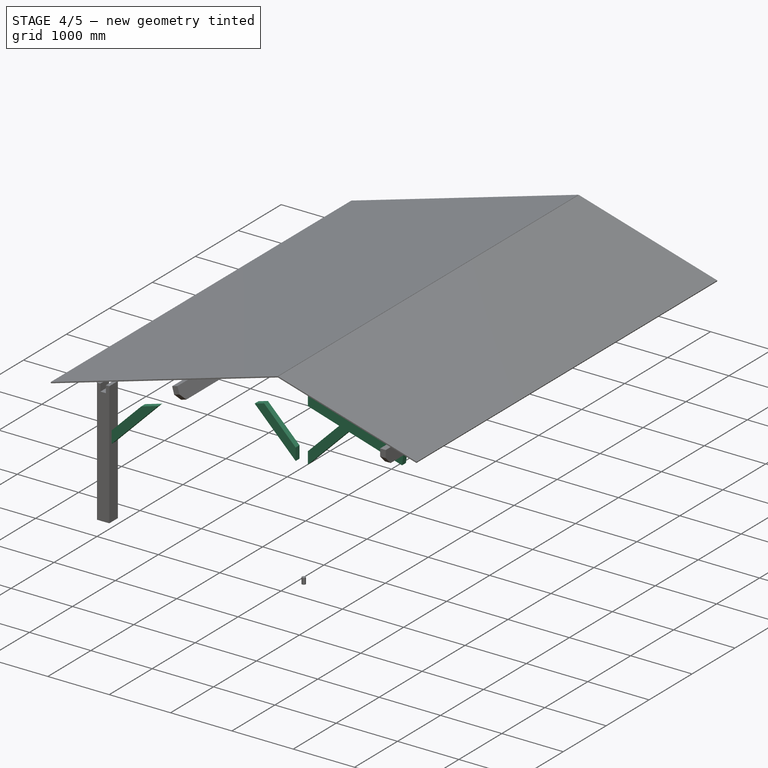
[diagram: stage 4 of 5 — iso view after this stage's code; geometry added in this stage tinted green]
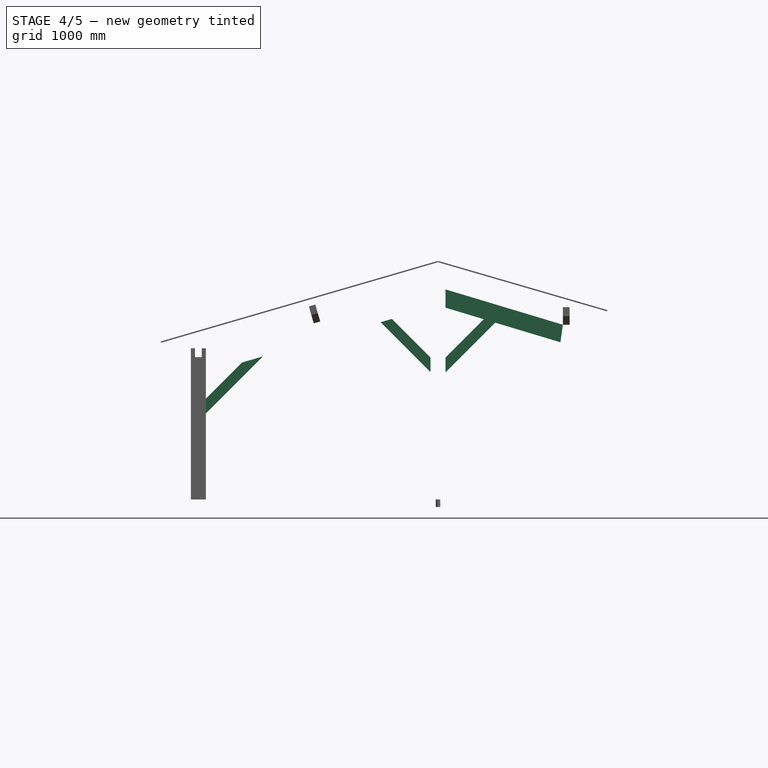
[diagram: stage 4 of 5 — front view after this stage's code; geometry added in this stage tinted green]
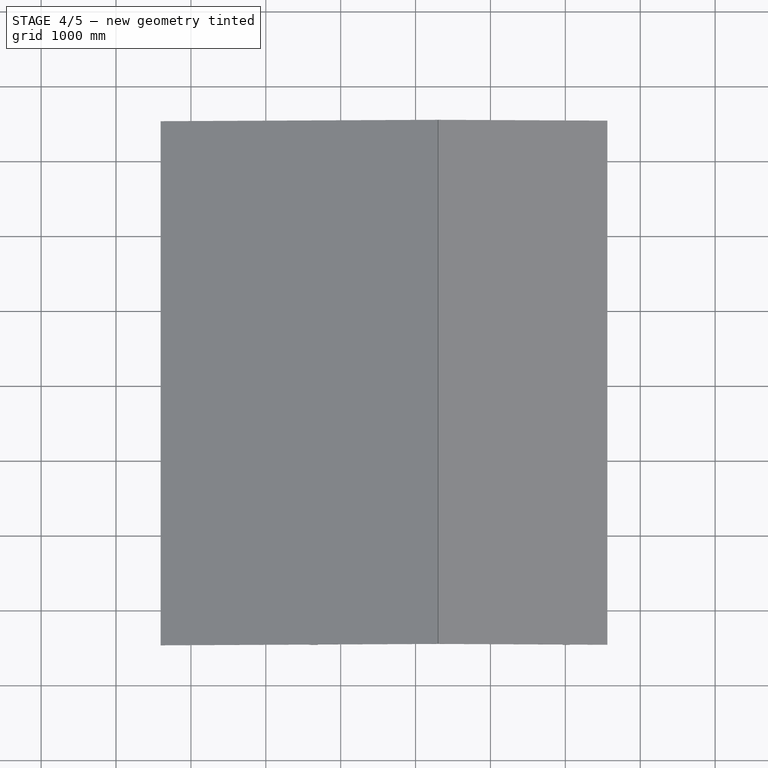
[diagram: stage 4 of 5 — top view after this stage's code; geometry added in this stage tinted green]
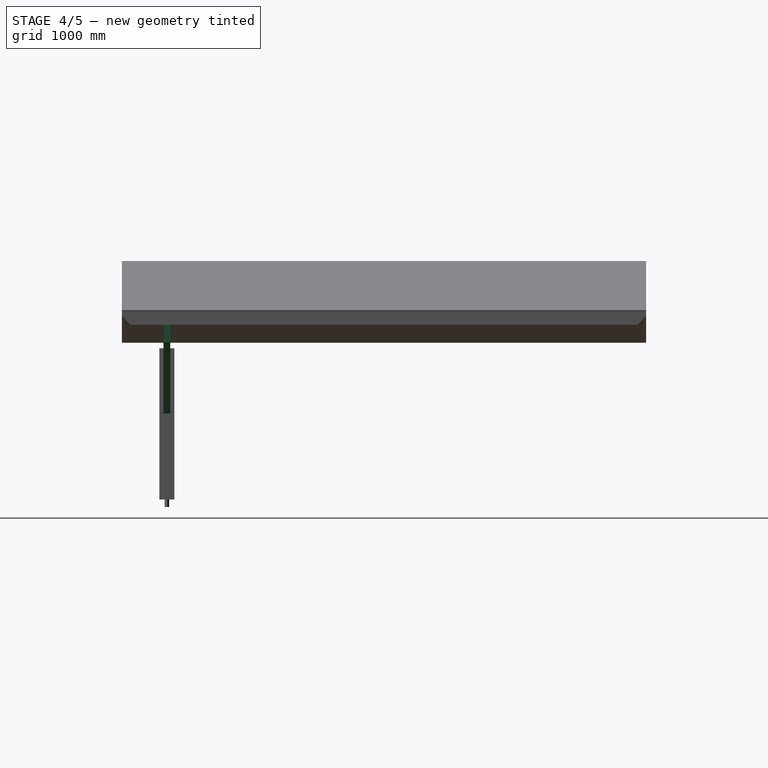
[diagram: stage 4 of 5 — right view after this stage's code; geometry added in this stage tinted green]
FEATURE [PartDesign::SubShapeBinder] Binder005
  BindCopyOnChange = 0
  BindMode = 0
  ClaimChildren = false
  Context = -> Body005 [Binder005.]
  Fuse = false
  MakeFace = true
  OffsetFill = false
  OffsetIntersection = false
  OffsetJoinType = 0
  OffsetOpenResult = false
  PartialLoad = false
  Placement = pos=(0,55,0) rot=(0,0,1;0rad)
  Refine = true
  Relative = true
  Support = -> [Sketch]
  _Version = 2
FEATURE [PartDesign::Pad] Pad004
  Direction = (0,1,2e-16)
  Length = 90
  Length2 = 10
  Placement = pos=(0,55,0) rot=(0,0,1;0rad)
  Profile = -> Binder005 [Edge37,Edge36,Edge35,Edge57,Edge28,Edge27]
  Refine = true
  Suppressed = false
  Type = 0
FEATURE [PartDesign::Body] Body005  label="Передняя_стропильная_балка"
  AllowCompound = false
  Group = -> [Binder005,Pad004]
  Origin = -> Origin005
  Tip = -> Pad004
FEATURE [PartDesign::SubShapeBinder] Binder006
  BindCopyOnChange = 0
  BindMode = 0
  ClaimChildren = false
  Context = -> Body006 [Binder006.]
  Fuse = false
  MakeFace = true
  OffsetFill = false
  OffsetIntersection = false
  OffsetJoinType = 0
  OffsetOpenResult = false
  PartialLoad = false
  Placement = pos=(0,55,0) rot=(0,0,1;0rad)
  Refine = true
  Relative = true
  Support = -> [Sketch]
  _Version = 2
FEATURE [PartDesign::Pad] Pad005
  Direction = (0,1,0)
  Length = 90
  Length2 = 10
  Placement = pos=(0,55,0) rot=(0,0,1;0rad)
  Profile = -> Binder006 [Edge41,Edge11,Edge42,Edge14]
  Refine = true
  Suppressed = false
  Type = 0
FEATURE [PartDesign::Body] Body006  label="Задняя_распорка"
  AllowCompound = false
  Group = -> [Binder006,Pad005]
  Origin = -> Origin006
  Tip = -> Pad005
FEATURE [PartDesign::SubShapeBinder] Binder007
  BindCopyOnChange = 0
  BindMode = 0
  ClaimChildren = false
  Context = -> Body007 [Binder007.]
  Fuse = false
  MakeFace = true
  OffsetFill = false
  OffsetIntersection = false
  OffsetJoinType = 0
  OffsetOpenResult = false
  PartialLoad = false
  Placement = pos=(0,55,0) rot=(0,0,1;0rad)
  Refine = true
  Relative = true
  Support = -> [Sketch]
  _Version = 2
FEATURE [PartDesign::Pad] Pad006
  Direction = (0,1,0)
  Length = 90
  Length2 = 10
  Placement = pos=(0,55,0) rot=(0,0,1;0rad)
  Profile = -> Binder007 [Edge18,Edge19,Edge17,Edge16]
  Refine = true
  Suppressed = false
  Type = 0
FEATURE [PartDesign::Body] Body007  label="Средняя_распорка"
  AllowCompound = false
  Group = -> [Binder007,Pad006]
  Origin = -> Origin007
  Tip = -> Pad006
FEATURE [PartDesign::SubShapeBinder] Binder008
  BindCopyOnChange = 0
  BindMode = 0
  ClaimChildren = false
  Context = -> Body008 [Binder008.]
  Fuse = false
  MakeFace = true
  OffsetFill = false
  OffsetIntersection = false
  OffsetJoinType = 0
  OffsetOpenResult = false
  PartialLoad = false
  Placement = pos=(0,55,0) rot=(0,0,1;0rad)
  Refine = true
  Relative = true
  Support = -> [Sketch]
  _Version = 2
FEATURE [PartDesign::Pad] Pad007
  Direction = (0,1,0)
  Length = 90
  Length2 = 10
  Placement = pos=(0,55,0) rot=(0,0,1;0rad)
  Profile = -> Binder008 [Edge26,Edge25,Edge34,Edge35]
  Refine = true
  Suppressed = false
  Type = 0
FEATURE [PartDesign::Body] Body017
  AllowCompound = false
  Group = -> [Clone006]
  Origin = -> Origin017
  Tip = -> Clone006
FEATURE [PartDesign::FeatureBase] Clone007
  BaseFeature = -> Body005
  Suppressed = false
FEATURE [PartDesign::Body] Body018
  AllowCompound = false
  Group = -> [Clone007]
  Origin = -> Origin018
  Tip = -> Clone007
FEATURE [PartDesign::FeatureBase] Clone008
  BaseFeature = -> Body006
  Suppressed = false
FEATURE [PartDesign::Body] Body019
  AllowCompound = false
  Group = -> [Clone008]
  Origin = -> Origin019
  Tip = -> Clone008
FEATURE [PartDesign::FeatureBase] Clone009
  BaseFeature = -> Body007
  Suppressed = false
FEATURE [PartDesign::Body] Body020
  AllowCompound = false
  Group = -> [Clone009]
  Origin = -> Origin020
  Tip = -> Clone009
FEATURE [PartDesign::FeatureBase] Clone010
  BaseFeature = -> Body008
  Suppressed = false
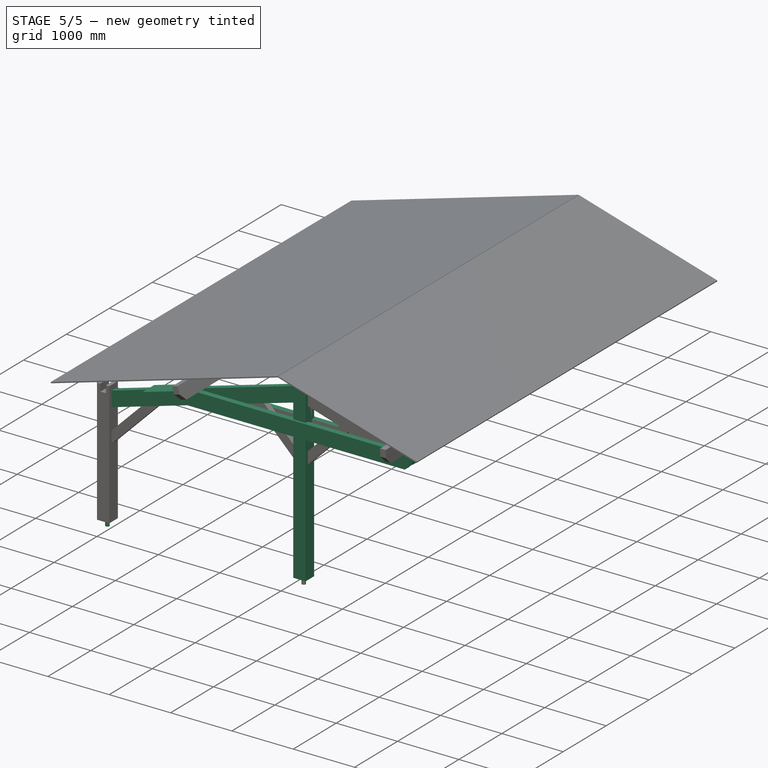
[diagram: stage 5 of 5 — iso view after this stage's code; geometry added in this stage tinted green]
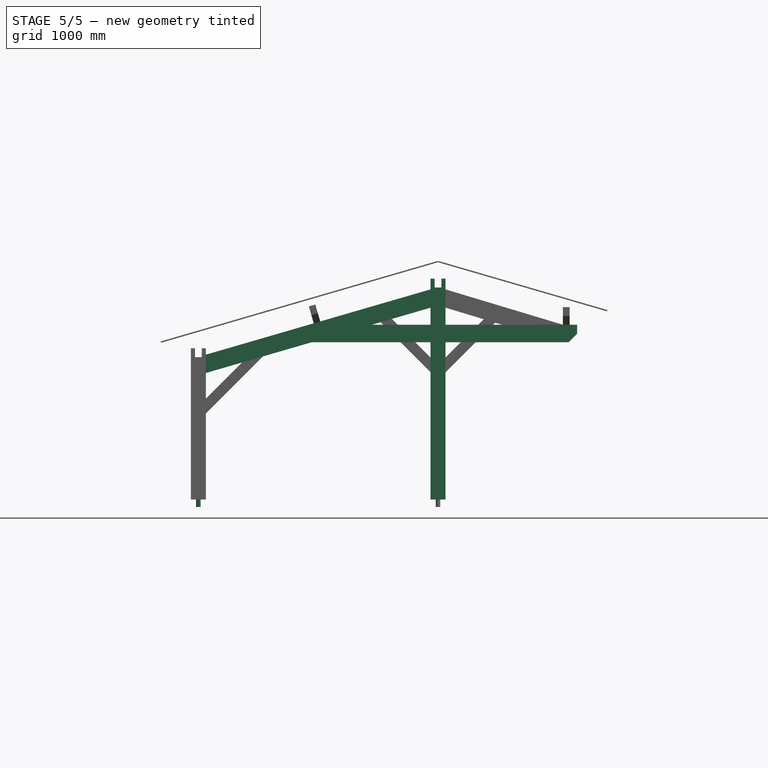
[diagram: stage 5 of 5 — front view after this stage's code; geometry added in this stage tinted green]
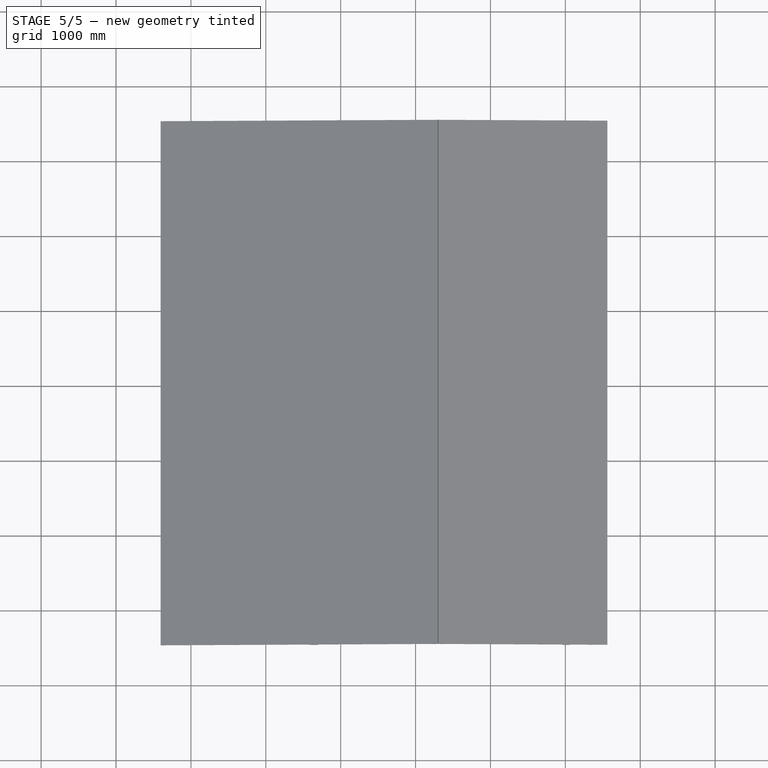
[diagram: stage 5 of 5 — top view after this stage's code; geometry added in this stage tinted green]
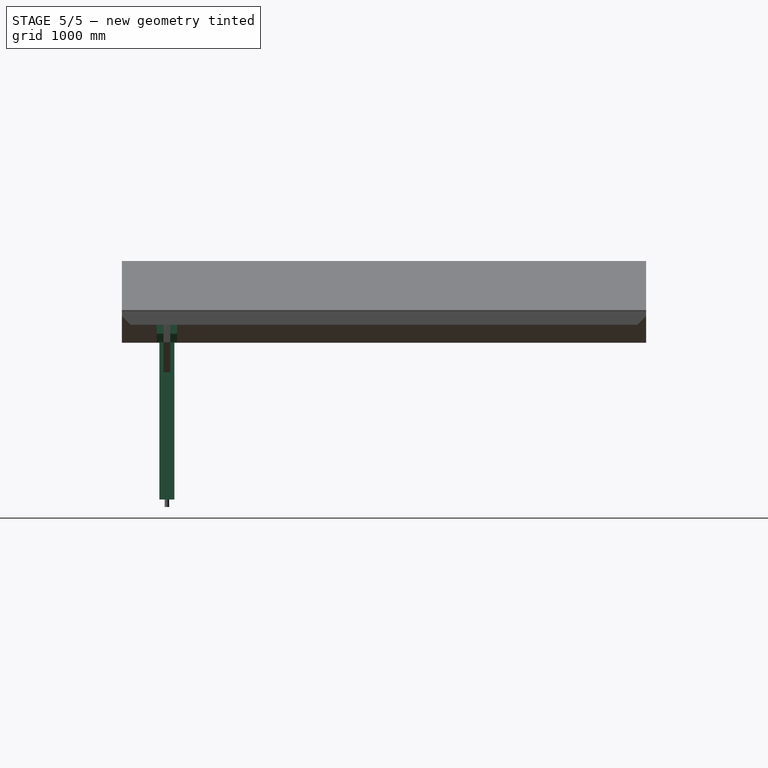
[diagram: stage 5 of 5 — right view after this stage's code; geometry added in this stage tinted green]
FEATURE [PartDesign::SubShapeBinder] Binder002
  BindCopyOnChange = 0
  BindMode = 0
  ClaimChildren = false
  Context = -> Body002 [Binder002.]
  Fuse = false
  MakeFace = true
  OffsetFill = false
  OffsetIntersection = false
  OffsetJoinType = 0
  OffsetOpenResult = false
  PartialLoad = false
  Placement = pos=(0,55,0) rot=(0,0,1;0rad)
  Refine = true
  Relative = true
  Support = -> [Sketch]
  _Version = 2
FEATURE [PartDesign::Pad] Pad002
  Direction = (0,1,2e-16)
  Length = 90
  Length2 = 10
  Placement = pos=(0,55,0) rot=(0,0,1;0rad)
  Profile = -> Binder002 [Edge13,Edge14,Edge15,Edge16,Edge20,Edge32,Edge56,Edge55,Edge40,Edge54,Edge64,Edge5]
  Refine = true
  Suppressed = false
  Type = 0
FEATURE [PartDesign::Body] Body009  label="Плита"
  AllowCompound = false
  Group = -> [Binder009,Pad008]
  Origin = -> Origin009
  Tip = -> Pad008
FEATURE [PartDesign::SubShapeBinder] Binder010
  BindCopyOnChange = 0
  BindMode = 0
  ClaimChildren = false
  Context = -> Body010 [Binder010.]
  Fuse = false
  MakeFace = true
  OffsetFill = false
  OffsetIntersection = false
  OffsetJoinType = 0
  OffsetOpenResult = false
  PartialLoad = false
  Refine = true
  Relative = true
  Support = -> [Body[Pad.Face3]]
  _Version = 2
FEATURE [PartDesign::SubShapeBinder] Binder011
  BindCopyOnChange = 0
  BindMode = 0
  ClaimChildren = false
  Context = -> Body010 [Binder011.]
  Fuse = false
  MakeFace = true
  OffsetFill = false
  OffsetIntersection = false
  OffsetJoinType = 0
  OffsetOpenResult = false
  PartialLoad = false
  Refine = true
  Relative = true
  Support = -> [Body009[Pad008.Face4]]
  _Version = 2
FEATURE [Sketcher::SketchObject] Sketch001
  ArcFitTolerance = 1e-06
  AttachmentSupport = -> [XY_Plane010]
  ExternalGeometry = -> [Binder010]
  FullyConstrained = true
  MakeInternals = false
  MapMode = 5
  sketch-geometry (2):
    g0: LineSegment [constr] StartX=0 StartY=0 StartZ=0 EndX=200 EndY=200 EndZ=0
    g1: Circle CenterX=100 CenterY=100 CenterZ=0 NormalX=0 NormalY=0 NormalZ=1 AngleXU=0 Radius=30
  constraints (4):
    c: Coincident(g0,g-1)
    c: Coincident(g0,g-3)
    c: Diameter(g1) = 60
    c: Symmetric(g0,g0,g1)
FEATURE [PartDesign::Pad] Pad009
  Direction = (0,0,1)
  Length = 10
  Length2 = 10
  Profile = -> Sketch001
  ReferenceAxis = -> Sketch001 [N_Axis]
  Refine = true
  Reversed = true
  Suppressed = false
  Type = 3
  UpToFace = -> Pad008 [Face4]
FEATURE [PartDesign::Body] Body011  label="Передняя_стойка1"
  AllowCompound = false
  Group = -> [Binder012,Binder013,Sketch002,Pad010]
  Origin = -> Origin011
  Tip = -> Pad010
FEATURE [PartDesign::FeatureBase] Clone001
  BaseFeature = -> Body010
  Suppressed = false
FEATURE [PartDesign::Body] Body012
  AllowCompound = false
  Group = -> [Clone001]
  Origin = -> Origin012
  Tip = -> Clone001
FEATURE [PartDesign::FeatureBase] Clone004
  BaseFeature = -> Body002
  Suppressed = false
FEATURE [PartDesign::Body] Body015
  AllowCompound = false
  Group = -> [Clone004]
  Origin = -> Origin015
  Tip = -> Clone004
FEATURE [PartDesign::FeatureBase] Clone005
  BaseFeature = -> Body003
  Suppressed = false
FEATURE [PartDesign::Body] Body016
  AllowCompound = false
  Group = -> [Clone005]
  Origin = -> Origin016
  Tip = -> Clone005
FEATURE [PartDesign::FeatureBase] Clone006
  BaseFeature = -> Body004
  Placement = pos=(0,180,0) rot=(0,0,1;0rad)
  Suppressed = false
FEATURE [PartDesign::Body] Body  label="Задняя_стойка"
  AllowCompound = false
  Group = -> [Binder,Pad,Boolean001]
  Origin = -> Origin
  Tip = -> Boolean001
FEATURE [PartDesign::FeatureBase] Clone002
  BaseFeature = -> Body
  Suppressed = false
FEATURE [PartDesign::Body] Body001  label="Передняя_стойка"
  AllowCompound = false
  Group = -> [Binder001,Pad001,Boolean,Boolean002]
  Origin = -> Origin001
  Tip = -> Boolean002
FEATURE [PartDesign::FeatureBase] Clone003
  BaseFeature = -> Body001
  Suppressed = false
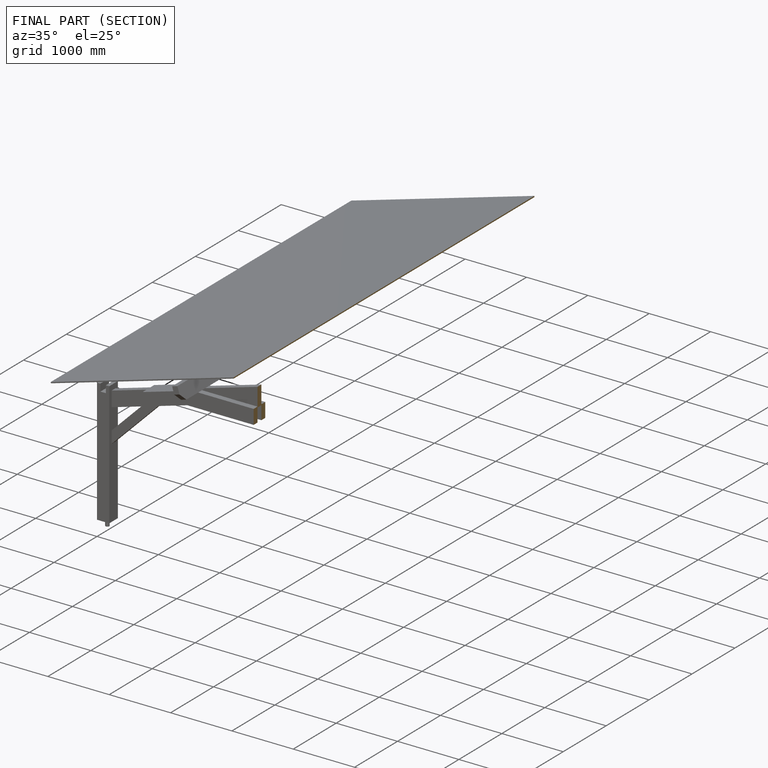
[diagram: finished part — half-section view (interior)]
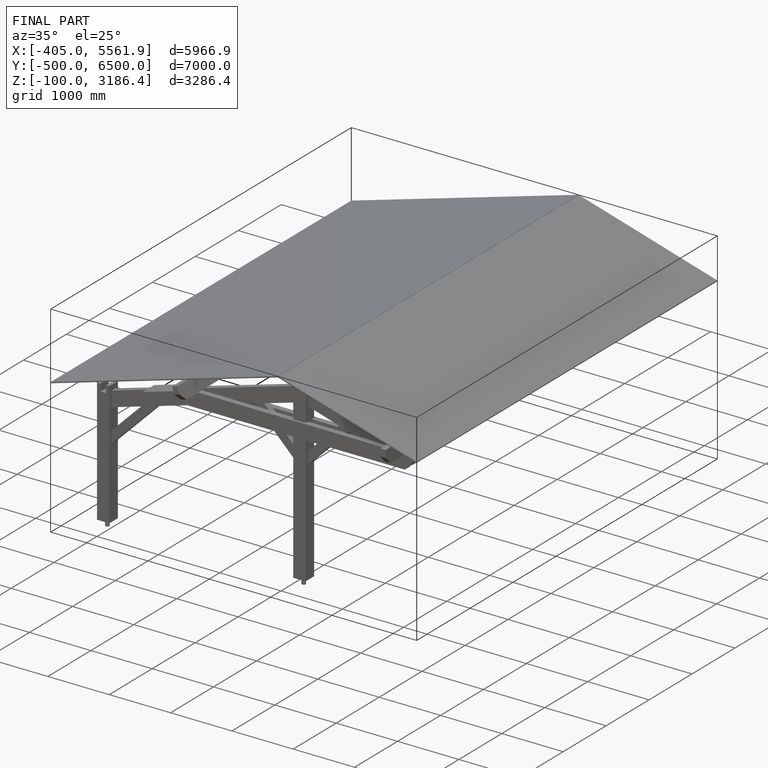
[diagram: finished part — iso view with bounding-box wireframe]
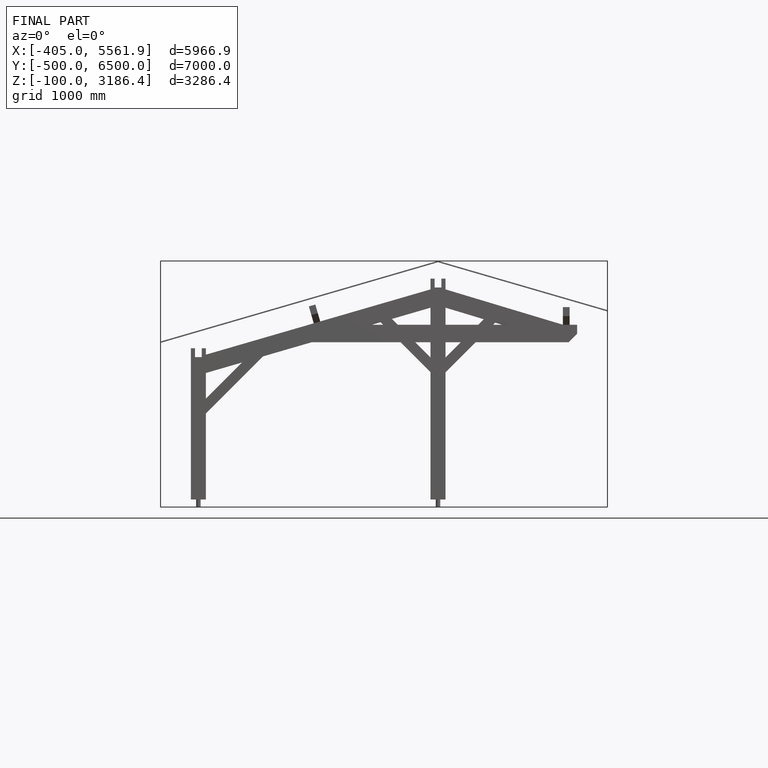
[diagram: finished part — front view with bounding-box wireframe]
